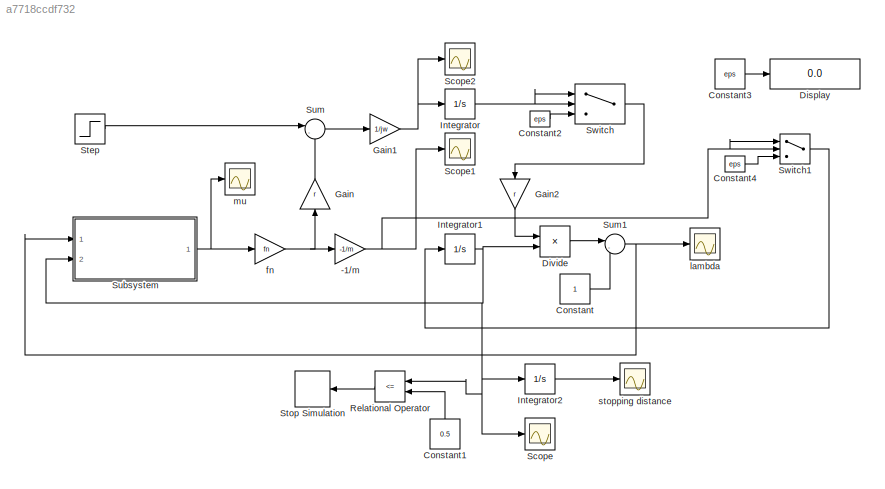
MODEL slx_a7718ccdf732
KIND model
CONFIG AbsTol = auto
CONFIG EnableMultiTasking = off
CONFIG FixedStep = 0.00001
CONFIG MaxStep = auto
CONFIG MinStep = auto
CONFIG RelTol = 1e-3
CONFIG SampleTimeConstraint = Unconstrained
CONFIG SolverName = ode8
CONFIG StartTime = 0.0
CONFIG StopTime = 20
BLOCK [Gain] -1//m
  Gain = -1/m
BLOCK [Constant] Constant
BLOCK [Constant] Constant1
  NameLocation = right
  Value = 0.5
BLOCK [Constant] Constant2
  Value = eps
BLOCK [Constant] Constant3
  Value = eps
BLOCK [Constant] Constant4
  Value = eps
BLOCK [Display] Display
  Decimation = 1
  Ports = [1]
BLOCK [Product] Divide
  Inputs = /*
  Ports = [2, 1]
BLOCK [Gain] Gain
  Gain = r
  NameLocation = right
BLOCK [Gain] Gain1
  Gain = 1/jw
BLOCK [Gain] Gain2
  Gain = r
  NameLocation = left
BLOCK [Integrator] Integrator
  InitialCondition = 84.18
  LowerSaturationLimit = 0
  Ports = [1, 1]
BLOCK [Integrator] Integrator1
  InitialCondition = 27.78
  LowerSaturationLimit = 0
  Ports = [1, 1]
BLOCK [Integrator] Integrator2
  LowerSaturationLimit = 0
  Ports = [1, 1]
BLOCK [RelationalOperator] Relational Operator
  InputSameDT = off
  Operator = <=
  OutDataTypeStr = boolean
  Ports = [2, 1]
  RndMeth = Simplest
BLOCK [Scope] Scope
  Floating = off
  NumInputPorts = 1
  Ports = [1]
  ScopeSpecificationString = Simulink.scopes.TimeScopeBlockCfg('CurrentConfiguration', extmgr.ConfigurationSet(extmgr.Configuration('Core','General UI',true),extmgr.Configuration('Core','Source UI',true),extmgr.Configuration('Sources','WiredSimulink',true,'DataLoggingVariableName','ScopeData2'),extmgr.Configuration('Visuals','Time Domain',true,'SerializedDisplays',{struct('MinYLimReal','-4.54696','MaxYLimReal','45.9176','YLab...<+1472ch>
BLOCK [Scope] Scope1
  Floating = off
  NumInputPorts = 1
  Ports = [1]
  ScopeSpecificationString = Simulink.scopes.TimeScopeBlockCfg('CurrentConfiguration', extmgr.ConfigurationSet(extmgr.Configuration('Core','General UI',true),extmgr.Configuration('Core','Source UI',true),extmgr.Configuration('Sources','WiredSimulink',true,'DataLoggingVariableName','ScopeData5'),extmgr.Configuration('Visuals','Time Domain',true,'SerializedDisplays',{struct('MinYLimReal','0.00178','MaxYLimReal','0.00378','YLabe...<+1361ch>
BLOCK [Scope] Scope2
  Floating = off
  NumInputPorts = 1
  Ports = [1]
  ScopeSpecificationString = Simulink.scopes.TimeScopeBlockCfg('CurrentConfiguration', extmgr.ConfigurationSet(extmgr.Configuration('Core','General UI',true),extmgr.Configuration('Core','Source UI',true),extmgr.Configuration('Sources','WiredSimulink',true,'DataLoggingVariableName','ScopeData6'),extmgr.Configuration('Visuals','Time Domain',true),extmgr.Configuration('Tools','Plot Navigation',true),extmgr.Configuration('Tools',...<+40ch>
BLOCK [Step] Step
  After = 1200
  SampleTime = 0
  Time = 0
BLOCK [Stop] Stop Simulation
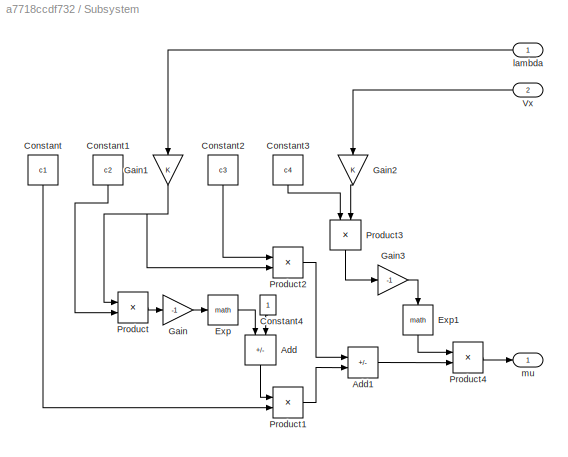
BLOCK [SubSystem] Subsystem
  Ports = [2, 1]
  RequestExecContextInheritance = off
BLOCK [Sum] Subsystem/Add
  IconShape = rectangular
  Inputs = -+
  NameLocation = left
  Ports = [2, 1]
BLOCK [Sum] Subsystem/Add1
  IconShape = rectangular
  Inputs = -+
  Ports = [2, 1]
BLOCK [Constant] Subsystem/Constant
  NameLocation = left
  Value = c1
BLOCK [Constant] Subsystem/Constant1
  NameLocation = left
  Value = c2
BLOCK [Constant] Subsystem/Constant2
  NameLocation = left
  Value = c3
BLOCK [Constant] Subsystem/Constant3
  NameLocation = left
  Value = c4
BLOCK [Constant] Subsystem/Constant4
  NameLocation = left
BLOCK [Math] Subsystem/Exp
  Ports = [1, 1]
BLOCK [Math] Subsystem/Exp1
  NameLocation = left
  Ports = [1, 1]
BLOCK [Gain] Subsystem/Gain
  Gain = -1
BLOCK [Gain] Subsystem/Gain1
  NameLocation = left
BLOCK [Gain] Subsystem/Gain2
  NameLocation = left
BLOCK [Gain] Subsystem/Gain3
  Gain = -1
BLOCK [Product] Subsystem/Product
  Ports = [2, 1]
BLOCK [Product] Subsystem/Product1
  Ports = [2, 1]
BLOCK [Product] Subsystem/Product2
  Ports = [2, 1]
BLOCK [Product] Subsystem/Product3
  NameLocation = left
  Ports = [2, 1]
BLOCK [Product] Subsystem/Product4
  Ports = [2, 1]
BLOCK [Inport] Subsystem/Vx
  Port = 2
BLOCK [Inport] Subsystem/lambda
BLOCK [Outport] Subsystem/mu
BLOCK [Sum] Sum
  Inputs = |-+
  Ports = [2, 1]
BLOCK [Sum] Sum1
  Inputs = |-+
  Ports = [2, 1]
BLOCK [Switch] Switch
  Criteria = u2 > Threshold
  InputSameDT = off
  SaturateOnIntegerOverflow = off
BLOCK [Switch] Switch1
  Criteria = u2 > Threshold
  InputSameDT = off
  SaturateOnIntegerOverflow = off
BLOCK [Gain] fn
  Gain = fn
BLOCK [Scope] lambda
  Floating = off
  NumInputPorts = 1
  Ports = [1]
  ScopeSpecificationString = Simulink.scopes.TimeScopeBlockCfg('CurrentConfiguration', extmgr.ConfigurationSet(extmgr.Configuration('Core','General UI',true),extmgr.Configuration('Core','Source UI',true),extmgr.Configuration('Sources','WiredSimulink',true),extmgr.Configuration('Visuals','Time Domain',true,'SerializedDisplays',{struct('MinYLimReal','-0.84407','MaxYLimReal','1.31882','YLabelReal','','MinYLimMag','0.00000','MaxY...<+1424ch>
BLOCK [Scope] mu
  Floating = off
  NumInputPorts = 1
  Ports = [1]
  ScopeSpecificationString = Simulink.scopes.TimeScopeBlockCfg('CurrentConfiguration', extmgr.ConfigurationSet(extmgr.Configuration('Core','General UI',true),extmgr.Configuration('Core','Source UI',true),extmgr.Configuration('Sources','WiredSimulink',true,'DataLoggingVariableName','ScopeData1'),extmgr.Configuration('Visuals','Time Domain',true,'SerializedDisplays',{struct('MinYLimReal','-2155478.8572','MaxYLimReal','239498.02...<+1452ch>
BLOCK [Scope] stopping distance
  Floating = off
  NumInputPorts = 1
  Ports = [1]
  ScopeSpecificationString = Simulink.scopes.TimeScopeBlockCfg('CurrentConfiguration', extmgr.ConfigurationSet(extmgr.Configuration('Core','General UI',true),extmgr.Configuration('Core','Source UI',true),extmgr.Configuration('Sources','WiredSimulink',true,'DataLoggingVariableName','ScopeData3'),extmgr.Configuration('Visuals','Time Domain',true,'SerializedDisplays',{struct('MinYLimReal','-33.68674','MaxYLimReal','303.18064','Y...<+1424ch>
NET -1//m:1 -> Scope1:1, Switch1:1, Switch1:2
LINE Constant1:1 -> Relational Operator:2
LINE Constant2:1 -> Switch:3
LINE Constant3:1 -> Display:1
LINE Constant4:1 -> Switch1:3
LINE Constant:1 -> Sum1:2
LINE Divide:1 -> Sum1:1
NET Gain1:1 -> Integrator:1, Scope2:1
LINE Gain2:1 -> Divide:1
LINE Gain:1 -> Sum:2
NET Integrator1:1 -> Divide:2, Integrator2:1, Relational Operator:1, Scope:1, Subsystem:2
LINE Integrator2:1 -> stopping distance:1
NET Integrator:1 -> Switch:1, Switch:2
LINE Relational Operator:1 -> Stop Simulation:1
LINE Step:1 -> Sum:1
LINE Subsystem/Add1:1 -> Subsystem/Product4:2
LINE Subsystem/Add:1 -> Subsystem/Product1:1
LINE Subsystem/Constant1:1 -> Subsystem/Product:2
LINE Subsystem/Constant2:1 -> Subsystem/Product2:1
LINE Subsystem/Constant3:1 -> Subsystem/Product3:1
LINE Subsystem/Constant4:1 -> Subsystem/Add:2
LINE Subsystem/Constant:1 -> Subsystem/Product1:2
LINE Subsystem/Exp1:1 -> Subsystem/Product4:1
LINE Subsystem/Exp:1 -> Subsystem/Add:1
NET Subsystem/Gain1:1 -> Subsystem/Product2:2, Subsystem/Product:1
LINE Subsystem/Gain2:1 -> Subsystem/Product3:2
LINE Subsystem/Gain3:1 -> Subsystem/Exp1:1
LINE Subsystem/Gain:1 -> Subsystem/Exp:1
LINE Subsystem/Product1:1 -> Subsystem/Add1:2
LINE Subsystem/Product2:1 -> Subsystem/Add1:1
LINE Subsystem/Product3:1 -> Subsystem/Gain3:1
LINE Subsystem/Product4:1 -> Subsystem/mu:1
LINE Subsystem/Product:1 -> Subsystem/Gain:1
LINE Subsystem/Vx:1 -> Subsystem/Gain2:1
LINE Subsystem/lambda:1 -> Subsystem/Gain1:1
NET Subsystem:1 -> fn:1, mu:1
NET Sum1:1 -> Subsystem:1, lambda:1
LINE Sum:1 -> Gain1:1
LINE Switch1:1 -> Integrator1:1
LINE Switch:1 -> Gain2:1
NET fn:1 -> -1//m:1, Gain:1
note: NET lines group one-source signal fan-out (src -> all destinations, sorted); 1:1 wires keep LINE
